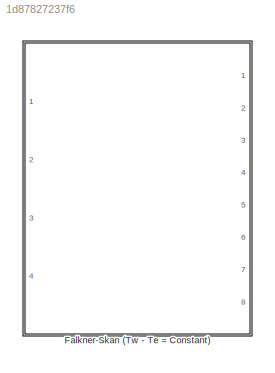
MODEL slx_1d87827237f6
KIND library
CONFIG AbsTol = auto
CONFIG FixedStep = auto
CONFIG MaxStep = auto
CONFIG MinStep = auto
CONFIG RelTol = 1e-3
CONFIG SampleTimeConstraint = Unconstrained
CONFIG Solver = ode45
CONFIG SolverMode = Auto
CONFIG SolverName = ode45
CONFIG StartTime = 0.0
CONFIG StopTime = 10.0
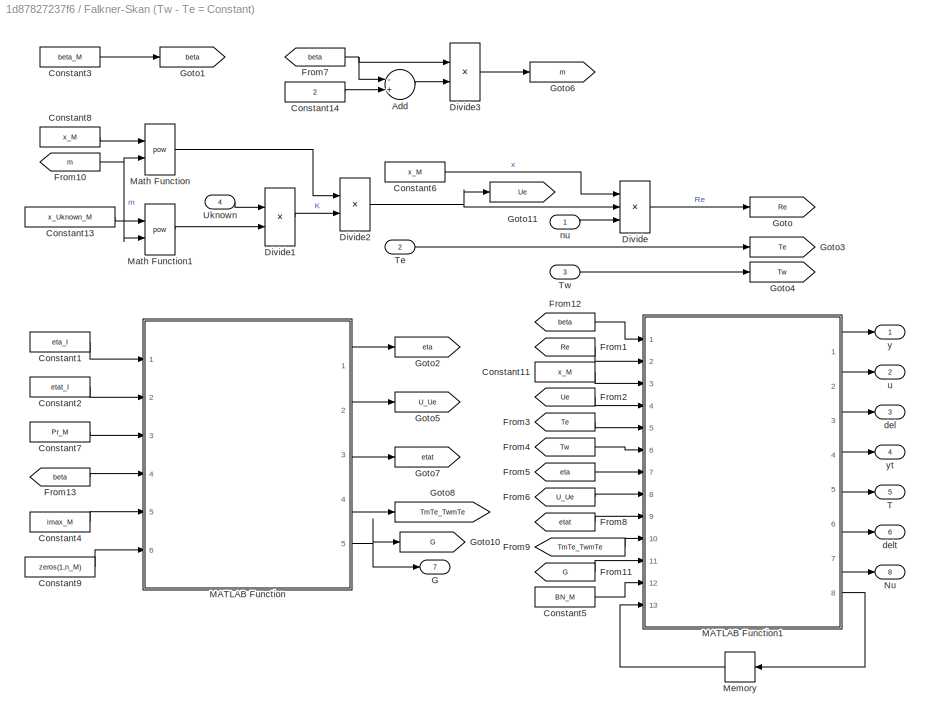
BLOCK [SubSystem] Falkner-Skan (Tw - Te = Constant)
  Ports = [4, 8]
  RequestExecContextInheritance = off
BLOCK [Sum] Falkner-Skan (Tw - Te = Constant)/Add
  InputSameDT = off
  Inputs = -+
  OutDataTypeStr = Inherit: Inherit via internal rule
  Ports = [2, 1]
  SaturateOnIntegerOverflow = off
BLOCK [Constant] Falkner-Skan (Tw - Te = Constant)/Constant1
  Value = eta_I
BLOCK [Constant] Falkner-Skan (Tw - Te = Constant)/Constant11
  Value = x_M
BLOCK [Constant] Falkner-Skan (Tw - Te = Constant)/Constant13
  Value = x_Uknown_M
BLOCK [Constant] Falkner-Skan (Tw - Te = Constant)/Constant14
  Value = 2
BLOCK [Constant] Falkner-Skan (Tw - Te = Constant)/Constant2
  Value = etat_I
BLOCK [Constant] Falkner-Skan (Tw - Te = Constant)/Constant3
  Value = beta_M
BLOCK [Constant] Falkner-Skan (Tw - Te = Constant)/Constant4
  Value = imax_M
BLOCK [Constant] Falkner-Skan (Tw - Te = Constant)/Constant5
  Value = BN_M
BLOCK [Constant] Falkner-Skan (Tw - Te = Constant)/Constant6
  Value = x_M
BLOCK [Constant] Falkner-Skan (Tw - Te = Constant)/Constant7
  Value = Pr_M
BLOCK [Constant] Falkner-Skan (Tw - Te = Constant)/Constant8
  Value = x_M
BLOCK [Constant] Falkner-Skan (Tw - Te = Constant)/Constant9
  Value = zeros(1,n_M)
BLOCK [Product] Falkner-Skan (Tw - Te = Constant)/Divide
  InputSameDT = off
  Inputs = **/
  OutDataTypeStr = Inherit: Inherit via internal rule
  Ports = [3, 1]
  RndMeth = Floor
  SaturateOnIntegerOverflow = off
BLOCK [Product] Falkner-Skan (Tw - Te = Constant)/Divide1
  InputSameDT = off
  Inputs = */
  OutDataTypeStr = Inherit: Inherit via internal rule
  Ports = [2, 1]
  RndMeth = Floor
  SaturateOnIntegerOverflow = off
BLOCK [Product] Falkner-Skan (Tw - Te = Constant)/Divide2
  InputSameDT = off
  Inputs = **
  OutDataTypeStr = Inherit: Inherit via internal rule
  Ports = [2, 1]
  RndMeth = Floor
  SaturateOnIntegerOverflow = off
BLOCK [Product] Falkner-Skan (Tw - Te = Constant)/Divide3
  InputSameDT = off
  Inputs = */
  OutDataTypeStr = Inherit: Inherit via internal rule
  Ports = [2, 1]
  RndMeth = Floor
  SaturateOnIntegerOverflow = off
BLOCK [From] Falkner-Skan (Tw - Te = Constant)/From1
  GotoTag = Re
BLOCK [From] Falkner-Skan (Tw - Te = Constant)/From10
  GotoTag = m
BLOCK [From] Falkner-Skan (Tw - Te = Constant)/From11
  GotoTag = G
BLOCK [From] Falkner-Skan (Tw - Te = Constant)/From12
  GotoTag = beta
BLOCK [From] Falkner-Skan (Tw - Te = Constant)/From13
  GotoTag = beta
BLOCK [From] Falkner-Skan (Tw - Te = Constant)/From2
  GotoTag = Ue
BLOCK [From] Falkner-Skan (Tw - Te = Constant)/From3
  GotoTag = Te
BLOCK [From] Falkner-Skan (Tw - Te = Constant)/From4
  GotoTag = Tw
BLOCK [From] Falkner-Skan (Tw - Te = Constant)/From5
  GotoTag = eta
BLOCK [From] Falkner-Skan (Tw - Te = Constant)/From6
  GotoTag = U_Ue
BLOCK [From] Falkner-Skan (Tw - Te = Constant)/From7
  GotoTag = beta
BLOCK [From] Falkner-Skan (Tw - Te = Constant)/From8
  GotoTag = etat
BLOCK [From] Falkner-Skan (Tw - Te = Constant)/From9
  GotoTag = TmTe_TwmTe
BLOCK [Outport] Falkner-Skan (Tw - Te = Constant)/G
  IconDisplay = Port number
  Port = 7
BLOCK [Goto] Falkner-Skan (Tw - Te = Constant)/Goto
  GotoTag = Re
BLOCK [Goto] Falkner-Skan (Tw - Te = Constant)/Goto1
  GotoTag = beta
BLOCK [Goto] Falkner-Skan (Tw - Te = Constant)/Goto10
  GotoTag = G
BLOCK [Goto] Falkner-Skan (Tw - Te = Constant)/Goto11
  GotoTag = Ue
BLOCK [Goto] Falkner-Skan (Tw - Te = Constant)/Goto2
  GotoTag = eta
BLOCK [Goto] Falkner-Skan (Tw - Te = Constant)/Goto3
  GotoTag = Te
BLOCK [Goto] Falkner-Skan (Tw - Te = Constant)/Goto4
  GotoTag = Tw
BLOCK [Goto] Falkner-Skan (Tw - Te = Constant)/Goto5
  GotoTag = U_Ue
BLOCK [Goto] Falkner-Skan (Tw - Te = Constant)/Goto6
  GotoTag = m
BLOCK [Goto] Falkner-Skan (Tw - Te = Constant)/Goto7
  GotoTag = etat
BLOCK [Goto] Falkner-Skan (Tw - Te = Constant)/Goto8
  GotoTag = TmTe_TwmTe
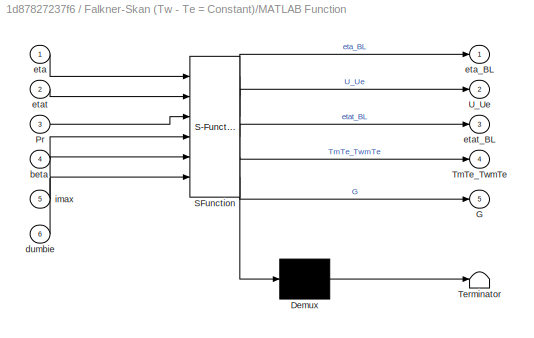
BLOCK [SubSystem] Falkner-Skan (Tw - Te = Constant)/MATLAB Function
  ErrorFcn = Stateflow.Translate.translate
  PermitHierarchicalResolution = ExplicitOnly
  Ports = [6, 5]
  RequestExecContextInheritance = off
  SFBlockType = MATLAB Function
  TreatAsAtomicUnit = on
BLOCK [Demux] Falkner-Skan (Tw - Te = Constant)/MATLAB Function/ Demux 
  Outputs = 1
  Ports = [1, 1]
BLOCK [S-Function] Falkner-Skan (Tw - Te = Constant)/MATLAB Function/ SFunction 
  EnableBusSupport = on
  FunctionName = sf_sfun
  PortCounts = [6 6]
  Ports = [6, 6]
  Tag = Stateflow S-Function lib_Convection_FalknerSkan 2
BLOCK [Terminator] Falkner-Skan (Tw - Te = Constant)/MATLAB Function/ Terminator 
BLOCK [Outport] Falkner-Skan (Tw - Te = Constant)/MATLAB Function/G
  IconDisplay = Port number
  Port = 5
BLOCK [Inport] Falkner-Skan (Tw - Te = Constant)/MATLAB Function/Pr
  IconDisplay = Port number
  Port = 3
BLOCK [Outport] Falkner-Skan (Tw - Te = Constant)/MATLAB Function/TmTe_TwmTe
  IconDisplay = Port number
  Port = 4
BLOCK [Outport] Falkner-Skan (Tw - Te = Constant)/MATLAB Function/U_Ue
  IconDisplay = Port number
  Port = 2
BLOCK [Inport] Falkner-Skan (Tw - Te = Constant)/MATLAB Function/beta
  IconDisplay = Port number
  Port = 4
BLOCK [Inport] Falkner-Skan (Tw - Te = Constant)/MATLAB Function/dumbie
  IconDisplay = Port number
  Port = 6
BLOCK [Inport] Falkner-Skan (Tw - Te = Constant)/MATLAB Function/eta
  IconDisplay = Port number
BLOCK [Outport] Falkner-Skan (Tw - Te = Constant)/MATLAB Function/eta_BL
  IconDisplay = Port number
BLOCK [Inport] Falkner-Skan (Tw - Te = Constant)/MATLAB Function/etat
  IconDisplay = Port number
  Port = 2
BLOCK [Outport] Falkner-Skan (Tw - Te = Constant)/MATLAB Function/etat_BL
  IconDisplay = Port number
  Port = 3
BLOCK [Inport] Falkner-Skan (Tw - Te = Constant)/MATLAB Function/imax
  IconDisplay = Port number
  Port = 5
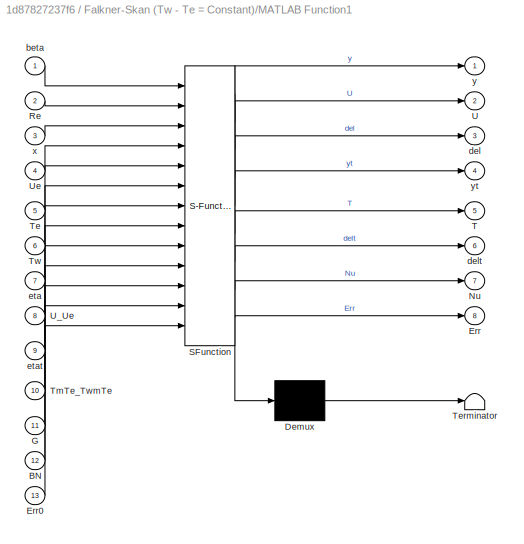
BLOCK [SubSystem] Falkner-Skan (Tw - Te = Constant)/MATLAB Function1
  ErrorFcn = Stateflow.Translate.translate
  PermitHierarchicalResolution = ExplicitOnly
  Ports = [13, 8]
  RequestExecContextInheritance = off
  SFBlockType = MATLAB Function
  TreatAsAtomicUnit = on
BLOCK [Demux] Falkner-Skan (Tw - Te = Constant)/MATLAB Function1/ Demux 
  Outputs = 1
  Ports = [1, 1]
BLOCK [S-Function] Falkner-Skan (Tw - Te = Constant)/MATLAB Function1/ SFunction 
  EnableBusSupport = on
  FunctionName = sf_sfun
  PortCounts = [13 9]
  Ports = [13, 9]
  Tag = Stateflow S-Function lib_Convection_FalknerSkan 1
BLOCK [Terminator] Falkner-Skan (Tw - Te = Constant)/MATLAB Function1/ Terminator 
BLOCK [Inport] Falkner-Skan (Tw - Te = Constant)/MATLAB Function1/BN
  IconDisplay = Port number
  Port = 12
BLOCK [Outport] Falkner-Skan (Tw - Te = Constant)/MATLAB Function1/Err
  IconDisplay = Port number
  Port = 8
BLOCK [Inport] Falkner-Skan (Tw - Te = Constant)/MATLAB Function1/Err0
  IconDisplay = Port number
  Port = 13
BLOCK [Inport] Falkner-Skan (Tw - Te = Constant)/MATLAB Function1/G
  IconDisplay = Port number
  Port = 11
BLOCK [Outport] Falkner-Skan (Tw - Te = Constant)/MATLAB Function1/Nu
  IconDisplay = Port number
  Port = 7
BLOCK [Inport] Falkner-Skan (Tw - Te = Constant)/MATLAB Function1/Re
  IconDisplay = Port number
  Port = 2
BLOCK [Outport] Falkner-Skan (Tw - Te = Constant)/MATLAB Function1/T
  IconDisplay = Port number
  Port = 5
BLOCK [Inport] Falkner-Skan (Tw - Te = Constant)/MATLAB Function1/Te
  IconDisplay = Port number
  Port = 5
BLOCK [Inport] Falkner-Skan (Tw - Te = Constant)/MATLAB Function1/TmTe_TwmTe
  IconDisplay = Port number
  Port = 10
BLOCK [Inport] Falkner-Skan (Tw - Te = Constant)/MATLAB Function1/Tw
  IconDisplay = Port number
  Port = 6
BLOCK [Outport] Falkner-Skan (Tw - Te = Constant)/MATLAB Function1/U
  IconDisplay = Port number
  Port = 2
BLOCK [Inport] Falkner-Skan (Tw - Te = Constant)/MATLAB Function1/U_Ue
  IconDisplay = Port number
  Port = 8
BLOCK [Inport] Falkner-Skan (Tw - Te = Constant)/MATLAB Function1/Ue
  IconDisplay = Port number
  Port = 4
BLOCK [Inport] Falkner-Skan (Tw - Te = Constant)/MATLAB Function1/beta
  IconDisplay = Port number
BLOCK [Outport] Falkner-Skan (Tw - Te = Constant)/MATLAB Function1/del
  IconDisplay = Port number
  Port = 3
BLOCK [Outport] Falkner-Skan (Tw - Te = Constant)/MATLAB Function1/delt
  IconDisplay = Port number
  Port = 6
BLOCK [Inport] Falkner-Skan (Tw - Te = Constant)/MATLAB Function1/eta
  IconDisplay = Port number
  Port = 7
BLOCK [Inport] Falkner-Skan (Tw - Te = Constant)/MATLAB Function1/etat
  IconDisplay = Port number
  Port = 9
BLOCK [Inport] Falkner-Skan (Tw - Te = Constant)/MATLAB Function1/x
  IconDisplay = Port number
  Port = 3
BLOCK [Outport] Falkner-Skan (Tw - Te = Constant)/MATLAB Function1/y
  IconDisplay = Port number
BLOCK [Outport] Falkner-Skan (Tw - Te = Constant)/MATLAB Function1/yt
  IconDisplay = Port number
  Port = 4
BLOCK [Math] Falkner-Skan (Tw - Te = Constant)/Math Function
  Operator = pow
  Ports = [2, 1]
BLOCK [Math] Falkner-Skan (Tw - Te = Constant)/Math Function1
  Operator = pow
  Ports = [2, 1]
BLOCK [Memory] Falkner-Skan (Tw - Te = Constant)/Memory
  X0 = zeros(1,16)
BLOCK [Outport] Falkner-Skan (Tw - Te = Constant)/Nu
  IconDisplay = Port number
  Port = 8
BLOCK [Outport] Falkner-Skan (Tw - Te = Constant)/T
  IconDisplay = Port number
  Port = 5
BLOCK [Inport] Falkner-Skan (Tw - Te = Constant)/Te
  IconDisplay = Port number
  Port = 2
BLOCK [Inport] Falkner-Skan (Tw - Te = Constant)/Tw
  IconDisplay = Port number
  Port = 3
BLOCK [Inport] Falkner-Skan (Tw - Te = Constant)/Uknown
  IconDisplay = Port number
  Port = 4
BLOCK [Outport] Falkner-Skan (Tw - Te = Constant)/del
  IconDisplay = Port number
  Port = 3
BLOCK [Outport] Falkner-Skan (Tw - Te = Constant)/delt
  IconDisplay = Port number
  Port = 6
BLOCK [Inport] Falkner-Skan (Tw - Te = Constant)/nu
  IconDisplay = Port number
BLOCK [Outport] Falkner-Skan (Tw - Te = Constant)/u
  IconDisplay = Port number
  Port = 2
BLOCK [Outport] Falkner-Skan (Tw - Te = Constant)/y
  IconDisplay = Port number
BLOCK [Outport] Falkner-Skan (Tw - Te = Constant)/yt
  IconDisplay = Port number
  Port = 4
LINE Falkner-Skan (Tw - Te = Constant)/Add:1 -> Falkner-Skan (Tw - Te = Constant)/Divide3:2
LINE Falkner-Skan (Tw - Te = Constant)/Constant11:1 -> Falkner-Skan (Tw - Te = Constant)/MATLAB Function1:3
LINE Falkner-Skan (Tw - Te = Constant)/Constant13:1 -> Falkner-Skan (Tw - Te = Constant)/Math Function1:1
LINE Falkner-Skan (Tw - Te = Constant)/Constant14:1 -> Falkner-Skan (Tw - Te = Constant)/Add:2
LINE Falkner-Skan (Tw - Te = Constant)/Constant1:1 -> Falkner-Skan (Tw - Te = Constant)/MATLAB Function:1
LINE Falkner-Skan (Tw - Te = Constant)/Constant2:1 -> Falkner-Skan (Tw - Te = Constant)/MATLAB Function:2
LINE Falkner-Skan (Tw - Te = Constant)/Constant3:1 -> Falkner-Skan (Tw - Te = Constant)/Goto1:1
LINE Falkner-Skan (Tw - Te = Constant)/Constant4:1 -> Falkner-Skan (Tw - Te = Constant)/MATLAB Function:5
LINE Falkner-Skan (Tw - Te = Constant)/Constant5:1 -> Falkner-Skan (Tw - Te = Constant)/MATLAB Function1:12
LINE Falkner-Skan (Tw - Te = Constant)/Constant6:1 -> Falkner-Skan (Tw - Te = Constant)/Divide:1
LINE Falkner-Skan (Tw - Te = Constant)/Constant7:1 -> Falkner-Skan (Tw - Te = Constant)/MATLAB Function:3
LINE Falkner-Skan (Tw - Te = Constant)/Constant8:1 -> Falkner-Skan (Tw - Te = Constant)/Math Function:1
LINE Falkner-Skan (Tw - Te = Constant)/Constant9:1 -> Falkner-Skan (Tw - Te = Constant)/MATLAB Function:6
LINE Falkner-Skan (Tw - Te = Constant)/Divide1:1 -> Falkner-Skan (Tw - Te = Constant)/Divide2:2
NET Falkner-Skan (Tw - Te = Constant)/Divide2:1 -> Falkner-Skan (Tw - Te = Constant)/Divide:2, Falkner-Skan (Tw - Te = Constant)/Goto11:1
LINE Falkner-Skan (Tw - Te = Constant)/Divide3:1 -> Falkner-Skan (Tw - Te = Constant)/Goto6:1
LINE Falkner-Skan (Tw - Te = Constant)/Divide:1 -> Falkner-Skan (Tw - Te = Constant)/Goto:1
NET Falkner-Skan (Tw - Te = Constant)/From10:1 -> Falkner-Skan (Tw - Te = Constant)/Math Function1:2, Falkner-Skan (Tw - Te = Constant)/Math Function:2
LINE Falkner-Skan (Tw - Te = Constant)/From11:1 -> Falkner-Skan (Tw - Te = Constant)/MATLAB Function1:11
LINE Falkner-Skan (Tw - Te = Constant)/From12:1 -> Falkner-Skan (Tw - Te = Constant)/MATLAB Function1:1
LINE Falkner-Skan (Tw - Te = Constant)/From13:1 -> Falkner-Skan (Tw - Te = Constant)/MATLAB Function:4
LINE Falkner-Skan (Tw - Te = Constant)/From1:1 -> Falkner-Skan (Tw - Te = Constant)/MATLAB Function1:2
LINE Falkner-Skan (Tw - Te = Constant)/From2:1 -> Falkner-Skan (Tw - Te = Constant)/MATLAB Function1:4
LINE Falkner-Skan (Tw - Te = Constant)/From3:1 -> Falkner-Skan (Tw - Te = Constant)/MATLAB Function1:5
LINE Falkner-Skan (Tw - Te = Constant)/From4:1 -> Falkner-Skan (Tw - Te = Constant)/MATLAB Function1:6
LINE Falkner-Skan (Tw - Te = Constant)/From5:1 -> Falkner-Skan (Tw - Te = Constant)/MATLAB Function1:7
LINE Falkner-Skan (Tw - Te = Constant)/From6:1 -> Falkner-Skan (Tw - Te = Constant)/MATLAB Function1:8
NET Falkner-Skan (Tw - Te = Constant)/From7:1 -> Falkner-Skan (Tw - Te = Constant)/Add:1, Falkner-Skan (Tw - Te = Constant)/Divide3:1
LINE Falkner-Skan (Tw - Te = Constant)/From8:1 -> Falkner-Skan (Tw - Te = Constant)/MATLAB Function1:9
LINE Falkner-Skan (Tw - Te = Constant)/From9:1 -> Falkner-Skan (Tw - Te = Constant)/MATLAB Function1:10
LINE Falkner-Skan (Tw - Te = Constant)/MATLAB Function1:1 -> Falkner-Skan (Tw - Te = Constant)/y:1
LINE Falkner-Skan (Tw - Te = Constant)/MATLAB Function1:2 -> Falkner-Skan (Tw - Te = Constant)/u:1
LINE Falkner-Skan (Tw - Te = Constant)/MATLAB Function1:3 -> Falkner-Skan (Tw - Te = Constant)/del:1
LINE Falkner-Skan (Tw - Te = Constant)/MATLAB Function1:4 -> Falkner-Skan (Tw - Te = Constant)/yt:1
LINE Falkner-Skan (Tw - Te = Constant)/MATLAB Function1:5 -> Falkner-Skan (Tw - Te = Constant)/T:1
LINE Falkner-Skan (Tw - Te = Constant)/MATLAB Function1:6 -> Falkner-Skan (Tw - Te = Constant)/delt:1
LINE Falkner-Skan (Tw - Te = Constant)/MATLAB Function1:7 -> Falkner-Skan (Tw - Te = Constant)/Nu:1
LINE Falkner-Skan (Tw - Te = Constant)/MATLAB Function1:8 -> Falkner-Skan (Tw - Te = Constant)/Memory:1
LINE Falkner-Skan (Tw - Te = Constant)/MATLAB Function:1 -> Falkner-Skan (Tw - Te = Constant)/Goto2:1
LINE Falkner-Skan (Tw - Te = Constant)/MATLAB Function:2 -> Falkner-Skan (Tw - Te = Constant)/Goto5:1
LINE Falkner-Skan (Tw - Te = Constant)/MATLAB Function:3 -> Falkner-Skan (Tw - Te = Constant)/Goto7:1
LINE Falkner-Skan (Tw - Te = Constant)/MATLAB Function:4 -> Falkner-Skan (Tw - Te = Constant)/Goto8:1
NET Falkner-Skan (Tw - Te = Constant)/MATLAB Function:5 -> Falkner-Skan (Tw - Te = Constant)/G:1, Falkner-Skan (Tw - Te = Constant)/Goto10:1
LINE Falkner-Skan (Tw - Te = Constant)/Math Function1:1 -> Falkner-Skan (Tw - Te = Constant)/Divide1:2
LINE Falkner-Skan (Tw - Te = Constant)/Math Function:1 -> Falkner-Skan (Tw - Te = Constant)/Divide2:1
LINE Falkner-Skan (Tw - Te = Constant)/Memory:1 -> Falkner-Skan (Tw - Te = Constant)/MATLAB Function1:13
LINE Falkner-Skan (Tw - Te = Constant)/Te:1 -> Falkner-Skan (Tw - Te = Constant)/Goto3:1
LINE Falkner-Skan (Tw - Te = Constant)/Tw:1 -> Falkner-Skan (Tw - Te = Constant)/Goto4:1
LINE Falkner-Skan (Tw - Te = Constant)/Uknown:1 -> Falkner-Skan (Tw - Te = Constant)/Divide1:1
LINE Falkner-Skan (Tw - Te = Constant)/nu:1 -> Falkner-Skan (Tw - Te = Constant)/Divide:3
note: NET lines group one-source signal fan-out (src -> all destinations, sorted); 1:1 wires keep LINE
CHART Falkner-Skan (Tw - Te = Constant)/MATLAB Function1 states=1 transitions=1
  STATE_LABEL 'eML_blk_kernel()'
  STATE_LABEL 'SCRIPT:\nfunction [y, U, del, yt, T, delt, Nu, Err] = BoundaryLayerCalcs(beta, Re, x, Ue, Te, Tw, eta, U_Ue, etat, TmTe_TwmTe, G, BN, Err0)\n%#codegen\n\n%Description\n% This function block computes dimensional quantities and forms the outputs\n\n%Inputs:\n% beta - pressure gradient variable [1x1]\n% Re - Reynolds number [mx1]\n% x - spatial variable along the surface [mx1]\n% Ue - free-stream velocity [mx1]...<+3608ch>'
CHART Falkner-Skan (Tw - Te = Constant)/MATLAB Function states=1 transitions=1
  STATE_LABEL 'eML_blk_kernel()'
  STATE_LABEL 'SCRIPT:\nfunction [eta_BL, U_Ue, etat_BL, TmTe_TwmTe, G] = FalknerSkan( eta, etat, Pr, beta, imax, dumbie)\n%#codegen\n\n%Description\n%   This block solves the Falkner-Skan flow problem by solving a set of\n%   non-linear ordinary differential equations via a 4th order Runge-Kutta\n%   method. The hydrodynamic boundary layer requires some iteration to\n%   determine the appropriate initial conditions whi...<+3608ch>'
